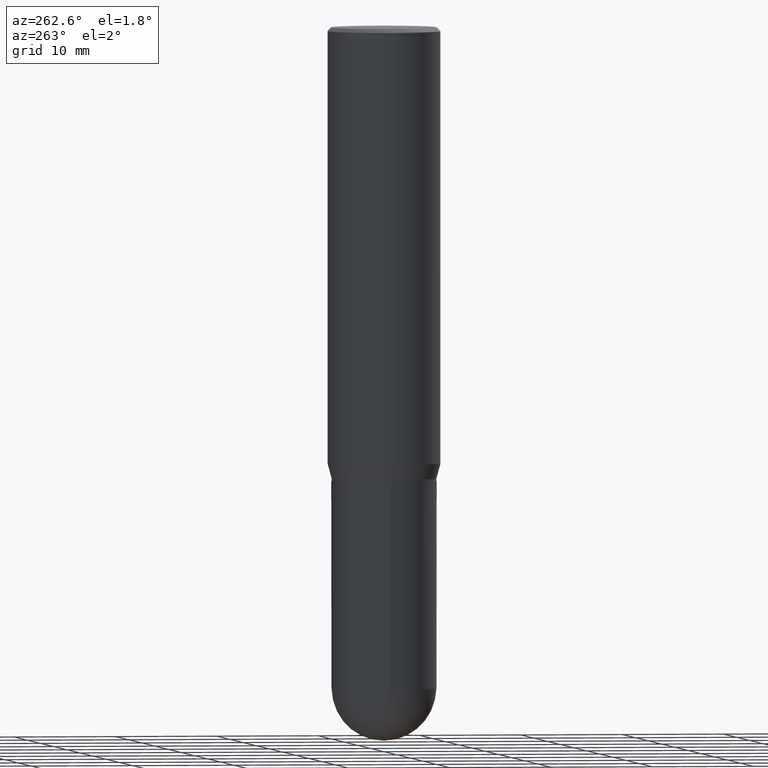
[diagram: clean part render]
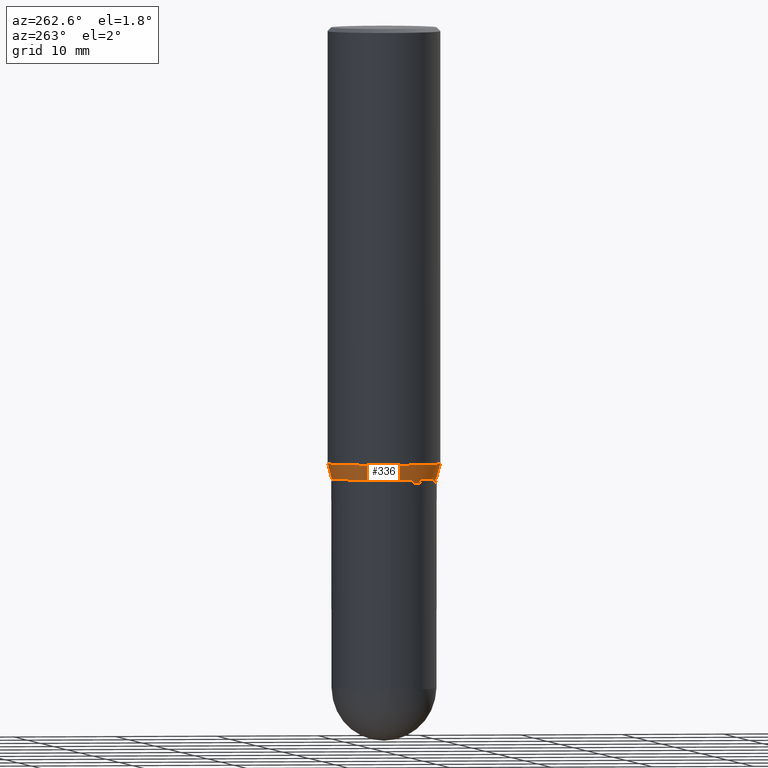
[diagram: same view with one face highlighted and labeled with its STEP entity id]
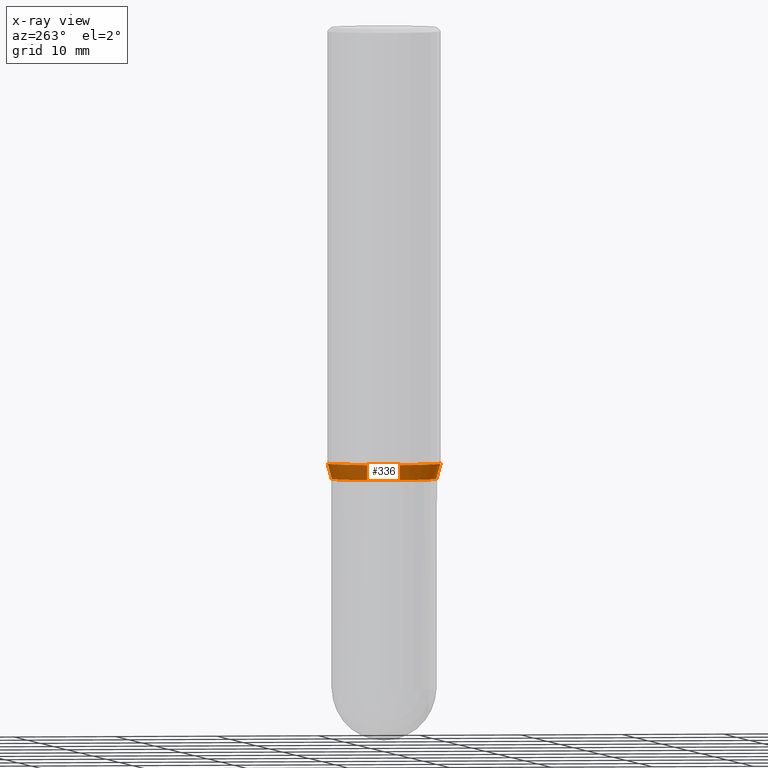
[diagram: x-ray of the same camera — body ghosted, the highlighted face saturated]
A machine part, auxiliary view. The second image highlights one B-rep face of the part: STEP entity #336.
The next image is the same camera in x-ray: the body ghosted, the highlighted face saturated — about 0% of this face is hidden behind the body in this view.
In plain terms, the highlighted conical surface has half-angle 15 deg.
Its self-contained STEP definition (entity closure, byte-faithful):
#15 = ORIENTED_EDGE ( 'NONE', *, *, #282, .T. ) ;
#19 = CARTESIAN_POINT ( 'NONE',  ( -1.418239719838037782E-15, -0.2031000000000060257, -1.739999999999999103 ) ) ;
#41 = CARTESIAN_POINT ( 'NONE',  ( 1.498712265402032742E-15, 0.2030999999999938688, -1.740000000000000879 ) ) ;
#56 = CARTESIAN_POINT ( 'NONE',  ( -1.418239719838037782E-15, -0.2031000000000060257, -1.739999999999999103 ) ) ;
#64 = DIRECTION ( 'NONE',  ( -6.982962677686266711E-15, -1.000000000000000000, 4.035225987687243463E-15 ) ) ;
#100 = DIRECTION ( 'NONE',  ( -2.445218819430257669E-29, 3.491839334104495039E-15, 1.000000000000000000 ) ) ;
#116 = DIRECTION ( 'NONE',  ( -2.445218819430257669E-29, 3.491839334104495039E-15, 1.000000000000000000 ) ) ;
#125 = ORIENTED_EDGE ( 'NONE', *, *, #383, .F. ) ;
#131 = AXIS2_PLACEMENT_3D ( 'NONE', #183, #100, #498 ) ;
#139 = VECTOR ( 'NONE', #148, 39.37007874015748143 ) ;
#148 = DIRECTION ( 'NONE',  ( 1.839019923739593216E-15, 0.2588190451025239591, 0.9659258262890674240 ) ) ;
#159 = VERTEX_POINT ( 'NONE', #41 ) ;
#160 = CIRCLE ( 'NONE', #131, 0.2187500000000000000 ) ;
#166 = VERTEX_POINT ( 'NONE', #447 ) ;
#183 = CARTESIAN_POINT ( 'NONE',  ( 4.111863840197258972E-29, -5.871853995066253491E-15, -1.681593404861546848 ) ) ;
#245 = CONICAL_SURFACE ( 'NONE', #289, 0.2030999999999999472, 0.2617993877991492413 ) ;
#252 = CARTESIAN_POINT ( 'NONE',  ( -1.527523085743829428E-15, -0.2187500000000058287, -1.681593404861545960 ) ) ;
#282 = EDGE_CURVE ( 'NONE', #400, #387, #377, .T. ) ;
#289 = AXIS2_PLACEMENT_3D ( 'NONE', #303, #460, #64 ) ;
#300 = FACE_OUTER_BOUND ( 'NONE', #306, .T. ) ;
#302 = DIRECTION ( 'NONE',  ( -1.807323732225323040E-15, -0.2588190451025171868, 0.9659258262890693114 ) ) ;
#303 = CARTESIAN_POINT ( 'NONE',  ( 4.254680745808648669E-29, -6.075800441341822188E-15, -1.739999999999999991 ) ) ;
#306 = EDGE_LOOP ( 'NONE', ( #504, #355, #15, #125 ) ) ;
#311 = EDGE_CURVE ( 'NONE', #159, #166, #497, .T. ) ;
#329 = CARTESIAN_POINT ( 'NONE',  ( 1.443112296328805307E-15, 0.2030999999999938688, -1.740000000000000879 ) ) ;
#336 = ADVANCED_FACE ( 'NONE', ( #300 ), #245, .T. ) ;
#355 = ORIENTED_EDGE ( 'NONE', *, *, #471, .T. ) ;
#377 = LINE ( 'NONE', #19, #379 ) ;
#379 = VECTOR ( 'NONE', #302, 39.37007874015748854 ) ;
#383 = EDGE_CURVE ( 'NONE', #166, #387, #160, .T. ) ;
#387 = VERTEX_POINT ( 'NONE', #252 ) ;
#400 = VERTEX_POINT ( 'NONE', #56 ) ;
#433 = CIRCLE ( 'NONE', #493, 0.2030999999999999472 ) ;
#447 = CARTESIAN_POINT ( 'NONE',  ( 1.554312234475260177E-15, 0.2187499999999941436, -1.681593404861547736 ) ) ;
#460 = DIRECTION ( 'NONE',  ( -2.445218819430257669E-29, 3.491839334104495039E-15, 1.000000000000000000 ) ) ;
#471 = EDGE_CURVE ( 'NONE', #159, #400, #433, .T. ) ;
#493 = AXIS2_PLACEMENT_3D ( 'NONE', #512, #116, #502 ) ;
#497 = LINE ( 'NONE', #329, #139 ) ;
#498 = DIRECTION ( 'NONE',  ( -6.982962677686265133E-15, -1.000000000000000000, 3.746534391310989557E-15 ) ) ;
#502 = DIRECTION ( 'NONE',  ( -6.982962677686266711E-15, -1.000000000000000000, 4.035225987687243463E-15 ) ) ;
#504 = ORIENTED_EDGE ( 'NONE', *, *, #311, .F. ) ;
#512 = CARTESIAN_POINT ( 'NONE',  ( 4.254680745808648669E-29, -6.075800441341822188E-15, -1.739999999999999991 ) ) ;